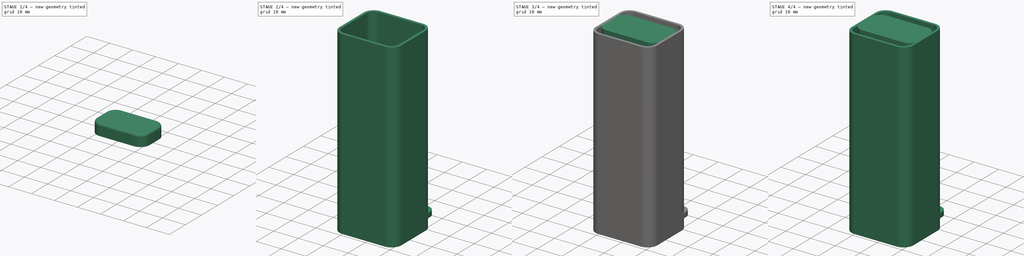
[diagram: build sequence overview — one tinted view per stage of 4, left to right]
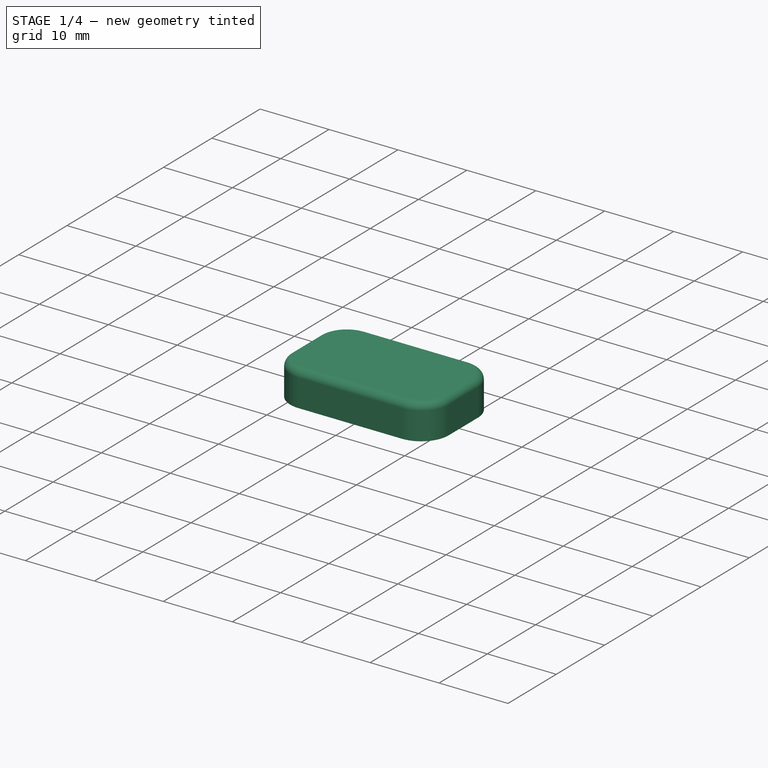
[diagram: stage 1 of 4 — iso view after this stage's code; geometry added in this stage tinted green]
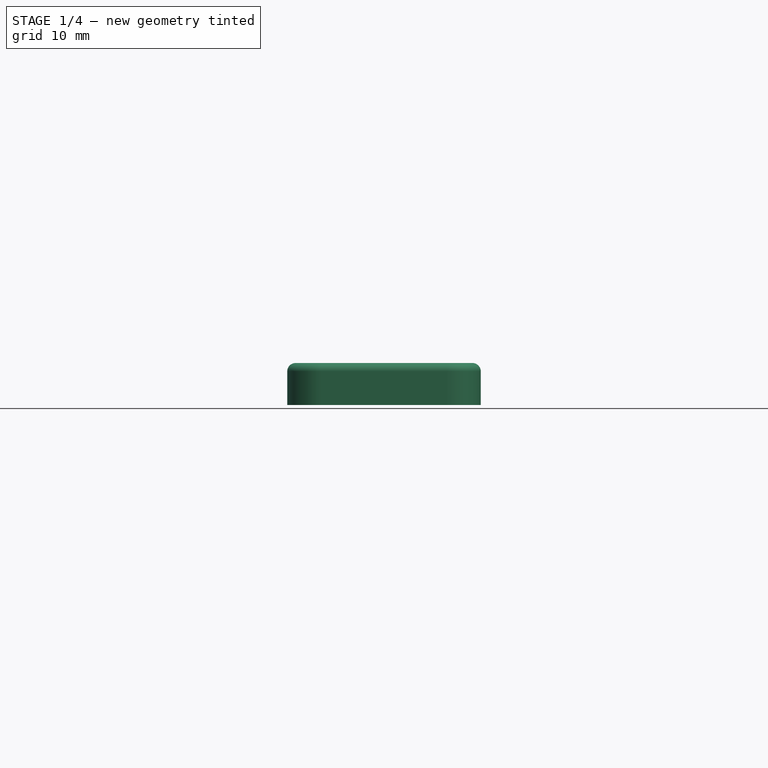
[diagram: stage 1 of 4 — front view after this stage's code; geometry added in this stage tinted green]
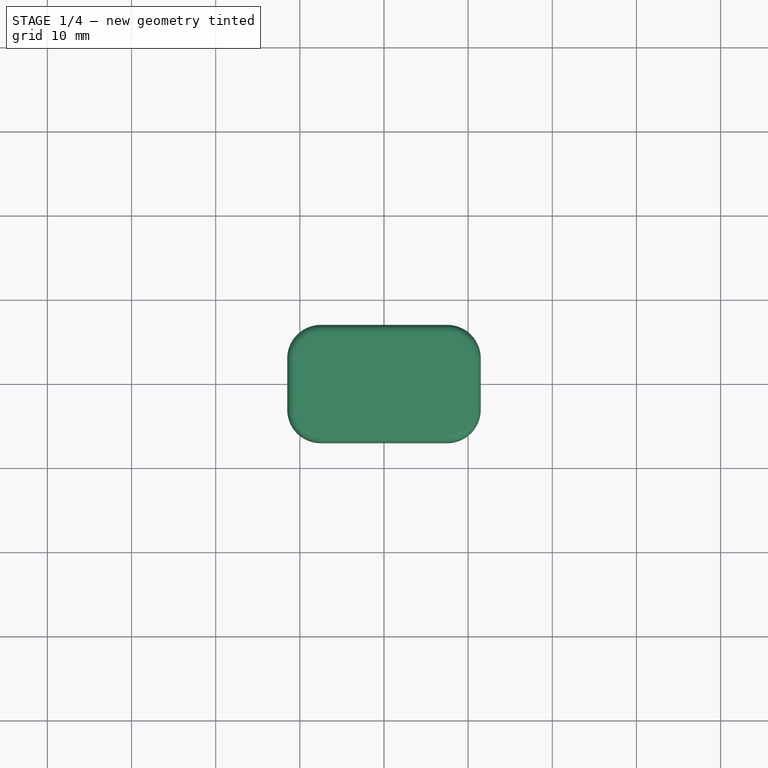
[diagram: stage 1 of 4 — top view after this stage's code; geometry added in this stage tinted green]
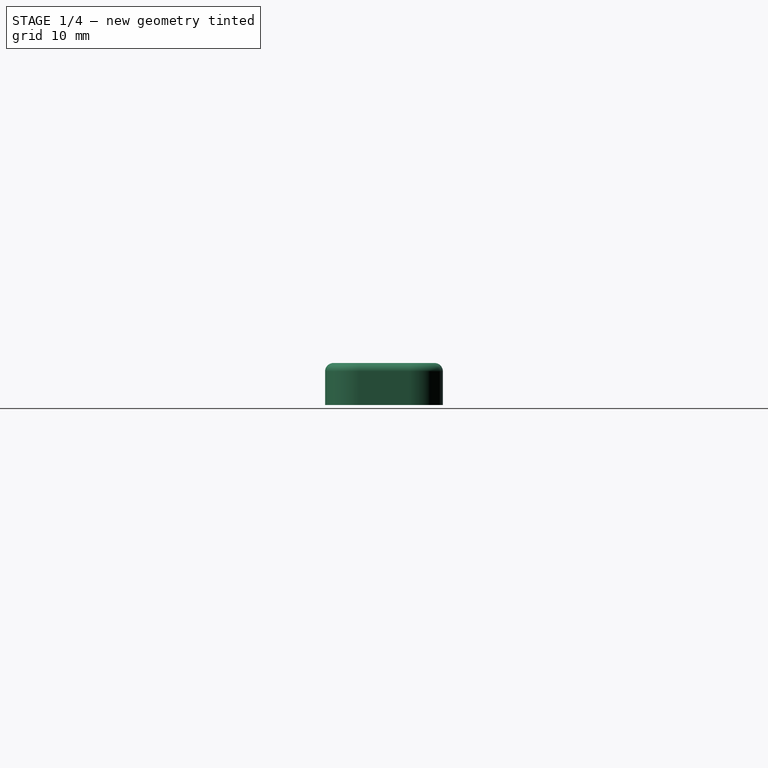
[diagram: stage 1 of 4 — right view after this stage's code; geometry added in this stage tinted green]
FCSTD DOCUMENT  (FreeCAD 0.20R25352 (Git))
Label: collar box
License: All rights reserved
LicenseURL: http://en.wikipedia.org/wiki/All_rights_reserved
objects: Sketcher::SketchObject×7, PartDesign::Pad×5, PartDesign::Thickness×3, PartDesign::Body×3, PartDesign::Pocket×2
note: 30 computed .brp shape members not serialized (recipe doc carries the construction recipe); baked Part::Feature solids carry a one-line shape summary decoded from their .brp

FEATURE [PartDesign::Body] Body
  Group = -> [Sketch,Pad,Sketch003,Pocket,Thickness,Sketch004,Pocket001]
  Origin = -> Origin
  Tip = -> Pocket001
FEATURE [Sketcher::SketchObject] Sketch006
  FullyConstrained = true
  MapMode = 5
  Support = -> [XY_Plane002]
FEATURE [PartDesign::Pad] Pad003
  Direction = (0,0,1)
  Length = 4
  Length2 = 100
  Profile = -> Sketch006
  Type = 0
FEATURE [Sketcher::SketchObject] Sketch005
  ExternalGeometry = -> [Pad003]
  FullyConstrained = false
  MapMode = 5
  Placement = pos=(0,0,4) rot=(0,0,1;0rad)
  Support = -> [Pad003]
  sketch-geometry (16):
    g0: LineSegment StartX=-15.2719 StartY=10 StartZ=0 EndX=9.5 EndY=10 EndZ=0
    g1: LineSegment StartX=12.5 StartY=7 StartZ=0 EndX=12.5 EndY=-7 EndZ=0
    g2: LineSegment StartX=-18.2719 StartY=-7 StartZ=0 EndX=-18.2719 EndY=7 EndZ=0
    g3: ArcOfCircle CenterX=9.5 CenterY=-7 CenterZ=0 NormalX=0 NormalY=0 NormalZ=1 AngleXU=0 Radius=3 StartAngle=4.71239 EndAngle=6.28319
    g4: ArcOfCircle CenterX=-15.2719 CenterY=-7 CenterZ=0 NormalX=0 NormalY=0 NormalZ=1 AngleXU=0 Radius=3 StartAngle=3.14159 EndAngle=4.71239
    g5: ArcOfCircle CenterX=-15.2719 CenterY=7 CenterZ=0 NormalX=0 NormalY=0 NormalZ=1 AngleXU=0 Radius=3 StartAngle=1.5708 EndAngle=3.14159
    g6: ArcOfCircle CenterX=9.5 CenterY=7 CenterZ=0 NormalX=0 NormalY=0 NormalZ=1 AngleXU=0 Radius=3 StartAngle=0 EndAngle=1.5708
    g7: LineSegment StartX=-0.5 StartY=7.2515 StartZ=0 EndX=-0.5 EndY=-10 EndZ=0
    g8: LineSegment StartX=-0.5 StartY=-10 StartZ=0 EndX=-15.2719 EndY=-10 EndZ=0
    g9: LineSegment StartX=0.5 StartY=7.2515 StartZ=0 EndX=0.5 EndY=-10 EndZ=0
    g10: LineSegment StartX=0.5 StartY=-10 StartZ=0 EndX=9.5 EndY=-10 EndZ=0
    g11: ArcOfCircle CenterX=-13.5 CenterY=5.5 CenterZ=0 NormalX=0 NormalY=0 NormalZ=1 AngleXU=0 Radius=1 StartAngle=8.28e-14 EndAngle=3.14159
    g12: ArcOfCircle CenterX=-13.5 CenterY=-5.5 CenterZ=0 NormalX=0 NormalY=0 NormalZ=1 AngleXU=0 Radius=1 StartAngle=3.14159 EndAngle=6.28319
    g13: LineSegment StartX=-14.5 StartY=5.5 StartZ=0 EndX=-14.5 EndY=-5.5 EndZ=0
    g14: LineSegment StartX=-12.5 StartY=-5.5 StartZ=0 EndX=-12.5 EndY=5.5 EndZ=0
    g15: GeomPoint X=-13.5 Y=7e-15 Z=0
  constraints (35):
    c: Horizontal(g0)
    c: Vertical(g1)
    c: Vertical(g2)
    c: Tangent(g2,g4) = 1.5708
    c: Equal(g4,g3)
    c: Diameter(g4) = 6
    c: Tangent(g2,g5) = 1.5708
    c: Tangent(g0,g5) = 1.5708
    c: Tangent(g1,g6) = 1.5708
    c: Tangent(g0,g6) = 1.5708
    c: Equal(g5,g6)
    c: Diameter(g5) = 6
    c: Tangent(g3,g1) = 1.5708
    c: DistanceX(g-4,g1) = 2
    c: Vertical(g7)
    c: Coincident(g7,g8)
    c: Horizontal(g8)
    c: Vertical(g9)
    c: Coincident(g9,g10)
    c: Coincident(g10,g3)
    c: Horizontal(g10)
    c: DistanceY(g4,g0) = 20
    c: Horizontal(g7,g9)
    c: Tangent(g8,g4) = 1.5708
    c: Symmetric(g0,g3,g-1)
    c: Tangent(g11,g13) = -1.5708
    c: Tangent(g13,g12) = -1.5708
    c: Tangent(g12,g14) = -1.5708
    c: Tangent(g14,g11) = -1.5708
    c: Equal(g11,g12)
    c: DistanceX(g11,g11) = 2
    c: Symmetric(g11,g12,g-1)
    c: DistanceY(g13,g13) = 11
    c: Symmetric(g11,g12,g15)
    c: DistanceX(g15,g-5) = 3
FEATURE [PartDesign::Thickness] Thickness002
  Base = -> Pad003 [Face9]
  BaseFeature = -> Pad003
  Intersection = false
  Join = 0
  Mode = 0
  SupportTransform = false
  Value = 1
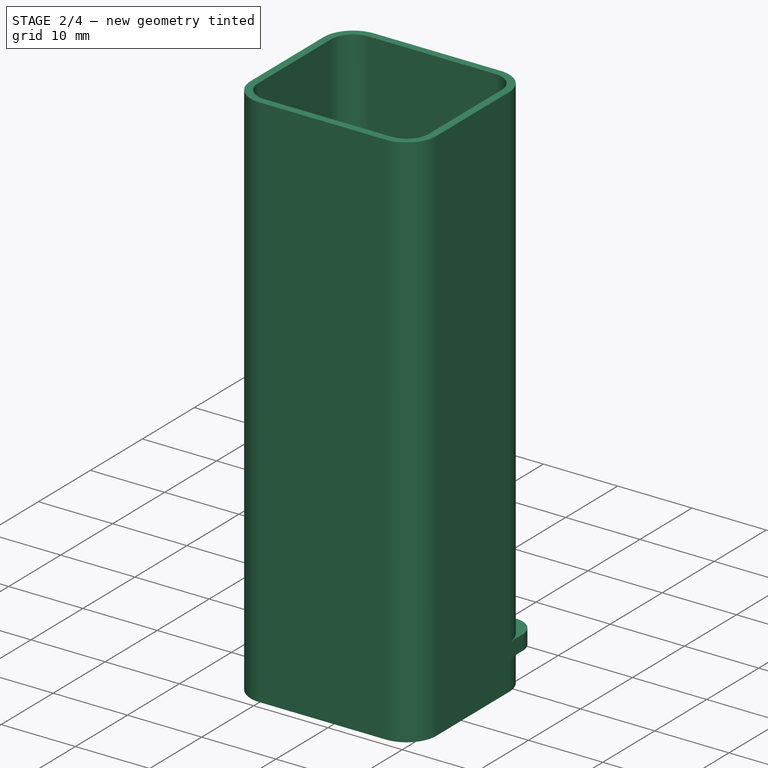
[diagram: stage 2 of 4 — iso view after this stage's code; geometry added in this stage tinted green]
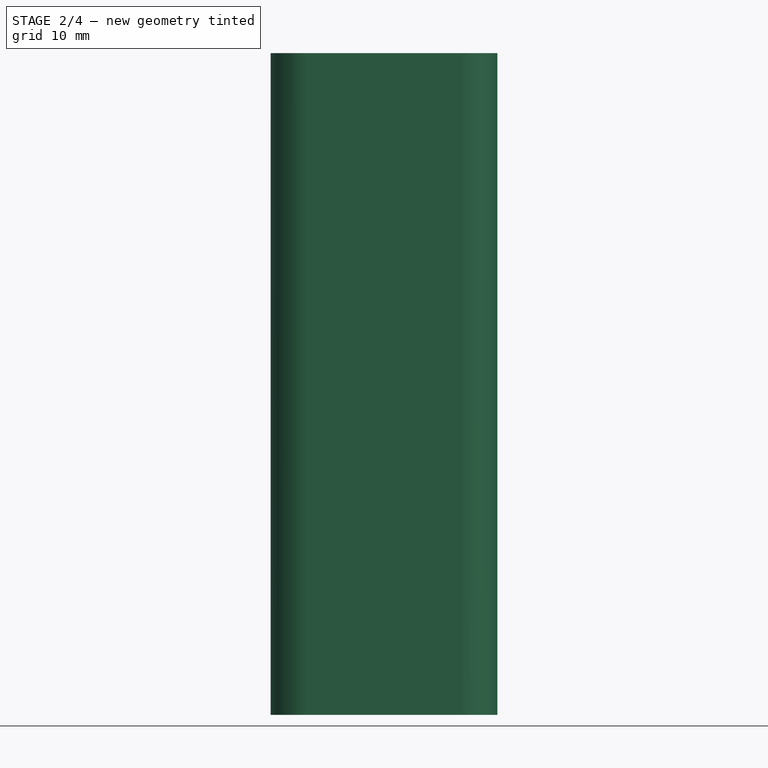
[diagram: stage 2 of 4 — front view after this stage's code; geometry added in this stage tinted green]
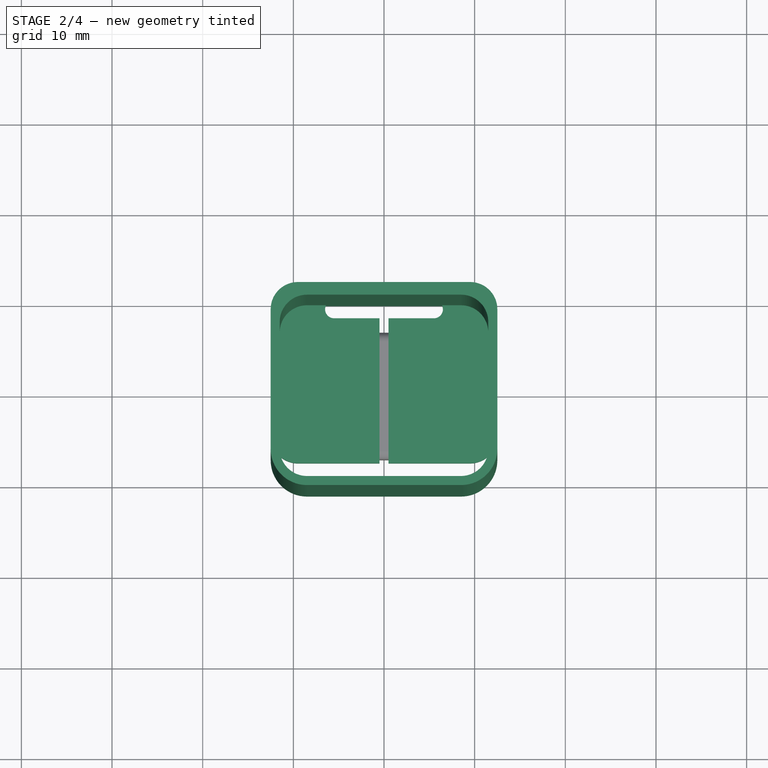
[diagram: stage 2 of 4 — top view after this stage's code; geometry added in this stage tinted green]
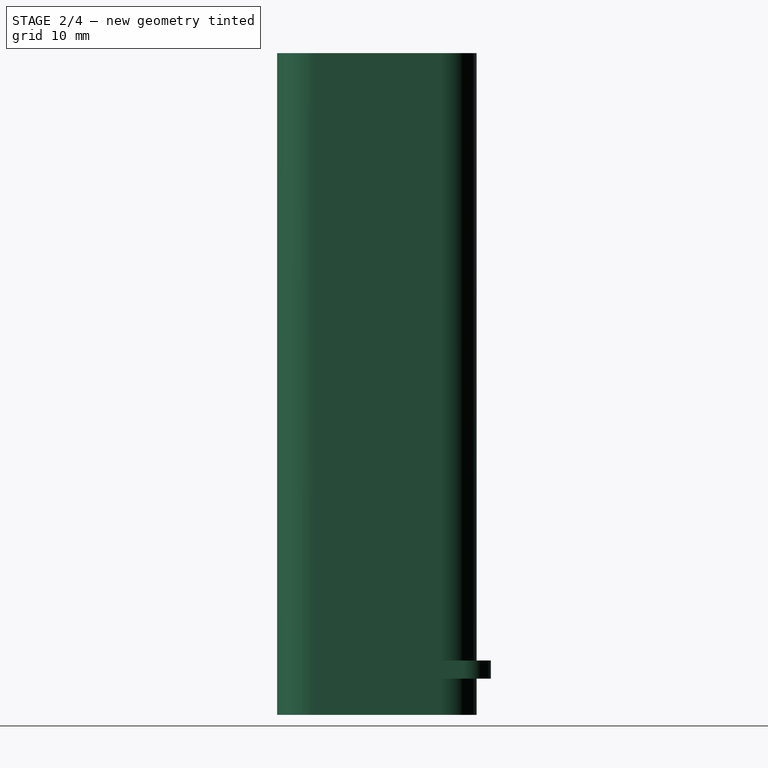
[diagram: stage 2 of 4 — right view after this stage's code; geometry added in this stage tinted green]
FEATURE [Sketcher::SketchObject] Sketch
  FullyConstrained = true
  MapMode = 5
  Support = -> [XY_Plane]
  sketch-geometry (8):
    g0: LineSegment StartX=-8.5 StartY=10 StartZ=0 EndX=8.5 EndY=10 EndZ=0
    g1: LineSegment StartX=11.5 StartY=7 StartZ=0 EndX=11.5 EndY=-7 EndZ=0
    g2: LineSegment StartX=8.5 StartY=-10 StartZ=0 EndX=-8.5 EndY=-10 EndZ=0
    g3: LineSegment StartX=-11.5 StartY=-7 StartZ=0 EndX=-11.5 EndY=7 EndZ=0
    g4: ArcOfCircle CenterX=8.5 CenterY=7 CenterZ=0 NormalX=0 NormalY=0 NormalZ=1 AngleXU=0 Radius=3 StartAngle=9.70904e-11 EndAngle=1.5708
    g5: ArcOfCircle CenterX=8.5 CenterY=-7 CenterZ=0 NormalX=0 NormalY=0 NormalZ=1 AngleXU=0 Radius=3 StartAngle=4.71239 EndAngle=6.28319
    g6: ArcOfCircle CenterX=-8.5 CenterY=-7 CenterZ=0 NormalX=0 NormalY=0 NormalZ=1 AngleXU=0 Radius=3 StartAngle=3.14159 EndAngle=4.71239
    g7: ArcOfCircle CenterX=-8.5 CenterY=7 CenterZ=0 NormalX=0 NormalY=0 NormalZ=1 AngleXU=0 Radius=3 StartAngle=1.5708 EndAngle=3.14159
  constraints (19):
    c: Horizontal(g0)
    c: Horizontal(g2)
    c: Vertical(g1)
    c: Vertical(g3)
    c: Tangent(g0,g4) = 1.5708
    c: Tangent(g1,g4) = 1.5708
    c: Tangent(g1,g5) = 1.5708
    c: Tangent(g2,g5) = 1.5708
    c: Tangent(g2,g6) = 1.5708
    c: Tangent(g3,g6) = 1.5708
    c: Tangent(g3,g7) = 1.5708
    c: Tangent(g0,g7) = 1.5708
    c: Equal(g4,g5)
    c: Equal(g5,g6)
    c: Equal(g6,g7)
    c: Radius(g7) = 3
    c: DistanceX(g3,g1) = 23
    c: DistanceY(g2,g0) = 20
    c: Symmetric(g7,g5,g-1)
FEATURE [PartDesign::Pad] Pad
  Direction = (0,0,1)
  Length = 73
  Length2 = 100
  Profile = -> Sketch
  Type = 0
FEATURE [PartDesign::Thickness] Thickness
  Base = -> Pad [Face9,Face10]
  BaseFeature = -> Pad
  Intersection = false
  Join = 0
  Mode = 0
  SupportTransform = false
  Value = 1
FEATURE [PartDesign::Pad] Pad004
  BaseFeature = -> Thickness002
  Direction = (0,0,1)
  Length = 2
  Length2 = 100
  Profile = -> Sketch005
  Type = 0
FEATURE [PartDesign::Body] Body002
  Group = -> [Sketch006,Pad003,Sketch005,Thickness002,Pad004]
  Origin = -> Origin002
  Placement = pos=(50,0,-22) rot=(0,0,1;0rad)
  Tip = -> Pad004
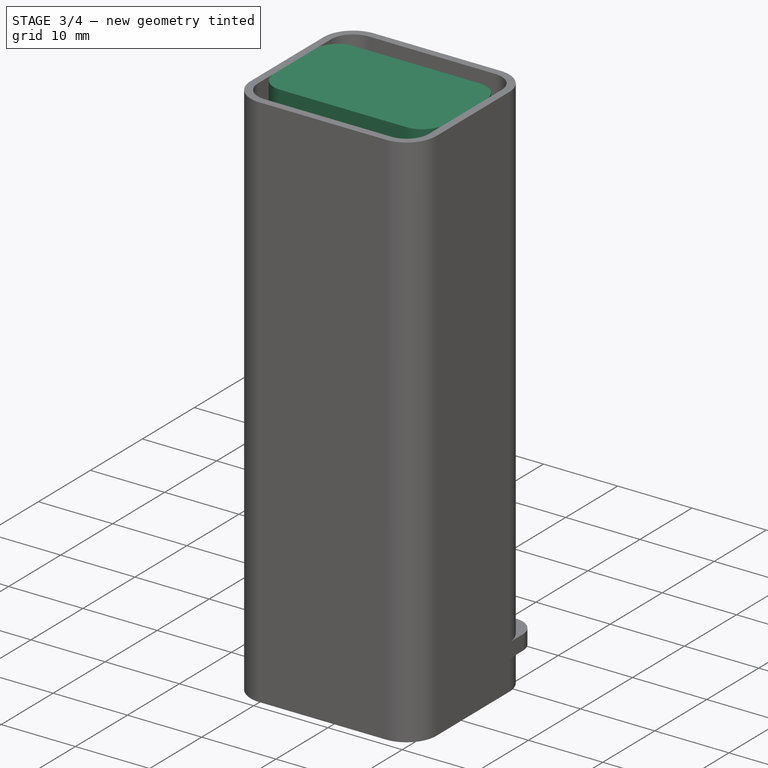
[diagram: stage 3 of 4 — iso view after this stage's code; geometry added in this stage tinted green]
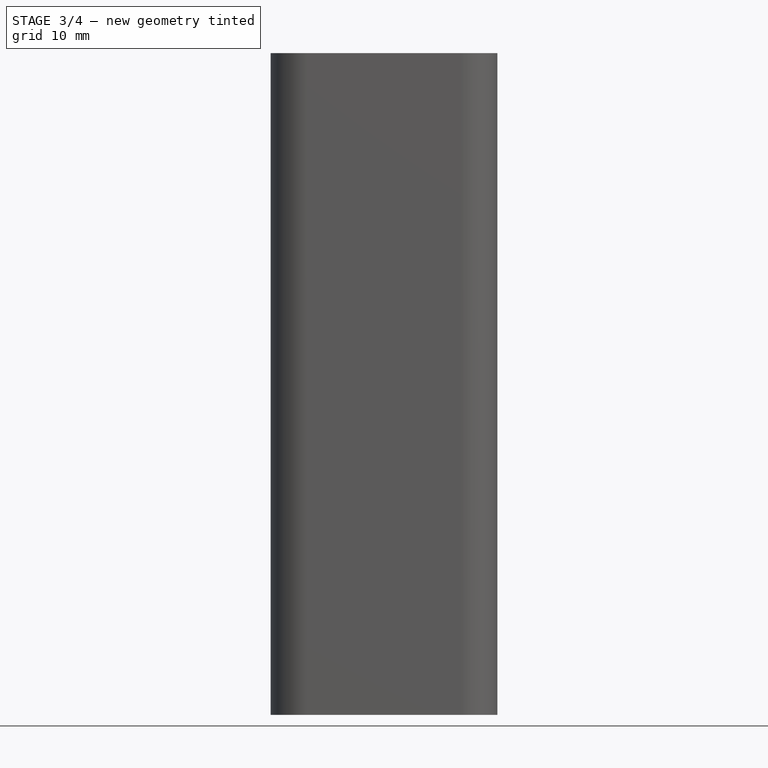
[diagram: stage 3 of 4 — front view after this stage's code; geometry added in this stage tinted green]
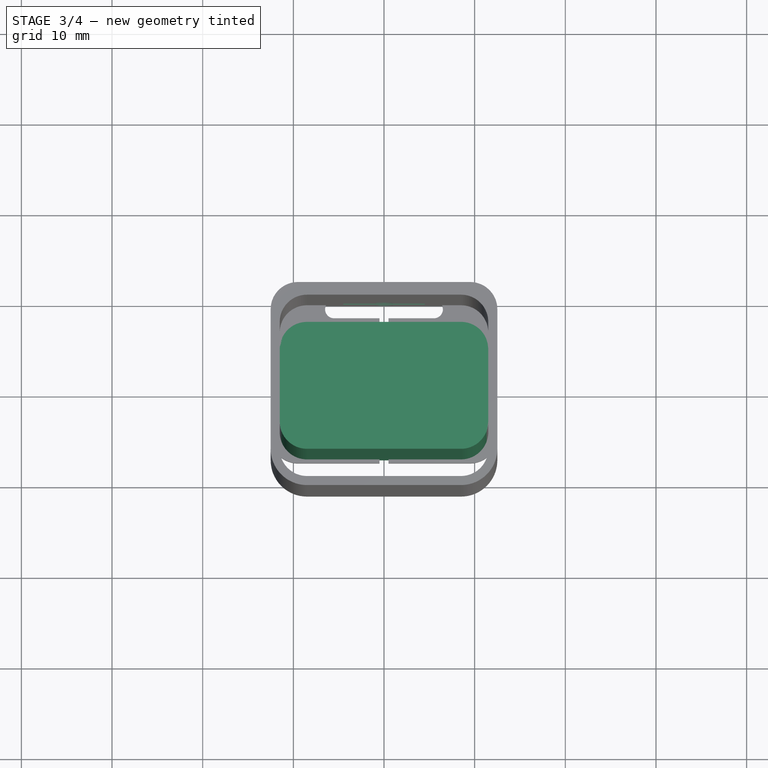
[diagram: stage 3 of 4 — top view after this stage's code; geometry added in this stage tinted green]
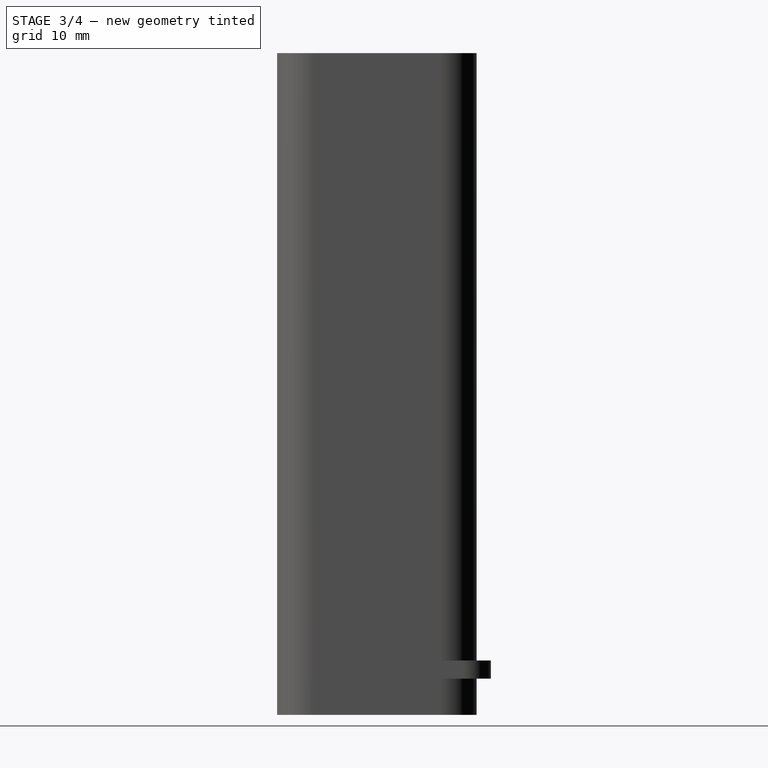
[diagram: stage 3 of 4 — right view after this stage's code; geometry added in this stage tinted green]
FEATURE [Sketcher::SketchObject] Sketch001
  FullyConstrained = true
  MapMode = 5
  Support = -> [XY_Plane001]
FEATURE [PartDesign::Pad] Pad001
  Direction = (0,0,1)
  Length = 4
  Length2 = 100
  Profile = -> Sketch001
  Type = 0
FEATURE [PartDesign::Body] Body001
  Group = -> [Sketch001,Pad001,Sketch002,Thickness001,Pad002]
  Origin = -> Origin001
  Placement = pos=(0,0,-22) rot=(0,0,1;0rad)
  Tip = -> Pad002
FEATURE [Sketcher::SketchObject] Sketch003
  FullyConstrained = false
  MapMode = 5
  Placement = pos=(11.5,0,0) rot=(0.57735,0.57735,0.57735;2.0944rad)
  Support = -> [Sketch003]
  sketch-geometry (4):
    g0: LineSegment StartX=-2.10179 StartY=41.1026 StartZ=0 EndX=2.23133 EndY=41.1026 EndZ=0
    g1: LineSegment StartX=2.23133 StartY=41.1026 StartZ=0 EndX=2.23133 EndY=37.0829 EndZ=0
    g2: LineSegment StartX=2.23133 StartY=37.0829 StartZ=0 EndX=-2.10179 EndY=37.0829 EndZ=0
    g3: LineSegment StartX=-2.10179 StartY=37.0829 StartZ=0 EndX=-2.10179 EndY=41.1026 EndZ=0
  constraints (8):
    c: Coincident(g0,g1)
    c: Coincident(g1,g2)
    c: Coincident(g2,g3)
    c: Coincident(g3,g0)
    c: Horizontal(g0)
    c: Horizontal(g2)
    c: Vertical(g1)
    c: Vertical(g3)
FEATURE [PartDesign::Pocket] Pocket
  BaseFeature = -> Pad
  Length = 5
  Length2 = 100
  Profile = -> Sketch003
  Type = 1
FEATURE [Sketcher::SketchObject] Sketch004
  ExternalGeometry = -> [Thickness]
  FullyConstrained = true
  MapMode = 5
  Placement = pos=(0,11,0) rot=(0,0.707107,0.707107;3.14159rad)
  Support = -> [Thickness]
  sketch-geometry (7):
    g0: LineSegment StartX=-4.5 StartY=14.62 StartZ=0 EndX=4.5 EndY=14.62 EndZ=0
    g1: LineSegment StartX=4.5 StartY=14.62 StartZ=0 EndX=4.5 EndY=10.62 EndZ=0
    g2: LineSegment StartX=4.5 StartY=10.62 StartZ=0 EndX=-4.5 EndY=10.62 EndZ=0
    g3: LineSegment StartX=-4.5 StartY=10.62 StartZ=0 EndX=-4.5 EndY=14.62 EndZ=0
    g4: Circle CenterX=0 CenterY=5 CenterZ=0 NormalX=0 NormalY=0 NormalZ=1 AngleXU=0 Radius=1
    g5: Circle CenterX=4.59e-14 CenterY=20.24 CenterZ=0 NormalX=0 NormalY=0 NormalZ=1 AngleXU=0 Radius=1
    g6: GeomPoint X=0 Y=12.62 Z=0
  constraints (18):
    c: Coincident(g0,g1)
    c: Coincident(g1,g2)
    c: Coincident(g2,g3)
    c: Coincident(g3,g0)
    c: Horizontal(g0)
    c: Horizontal(g2)
    c: Vertical(g1)
    c: Vertical(g3)
    c: DistanceX(g0,g0) = 9
    c: DistanceY(g3,g3) = 4
    c: PointOnObject(g6,g-2)
    c: Symmetric(g0,g1,g6)
    c: Equal(g4,g5)
    c: Diameter(g4) = 2
    c: PointOnObject(g4,g-2)
    c: Symmetric(g4,g5,g6)
    c: DistanceY(g4,g5) = 15.24
    c: DistanceY(g-1,g4) = 5
FEATURE [PartDesign::Pocket] Pocket001
  BaseFeature = -> Thickness
  Length = 5
  Length2 = 100
  Profile = -> Sketch004
  Type = 2
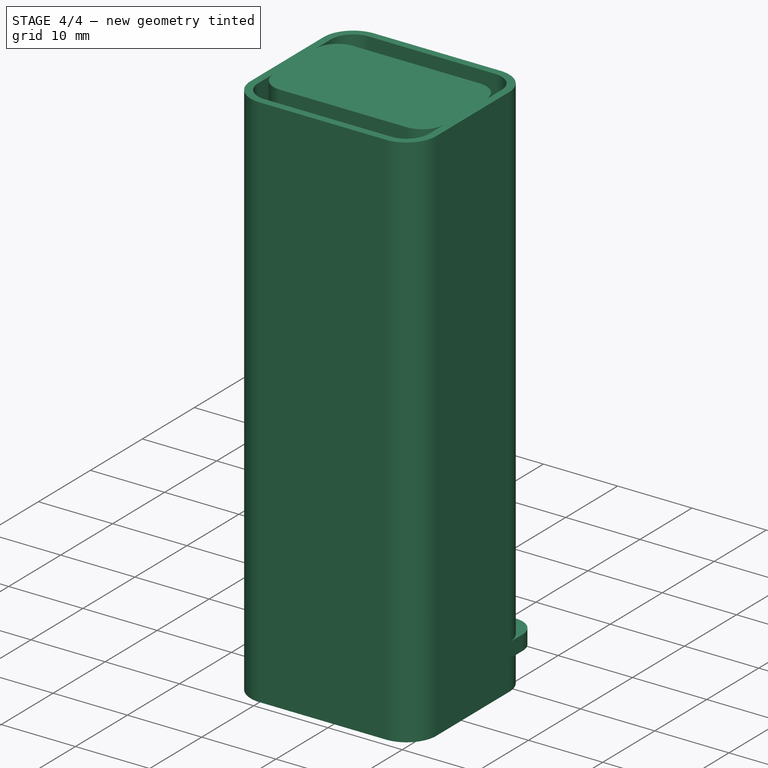
[diagram: stage 4 of 4 — iso view after this stage's code; geometry added in this stage tinted green]
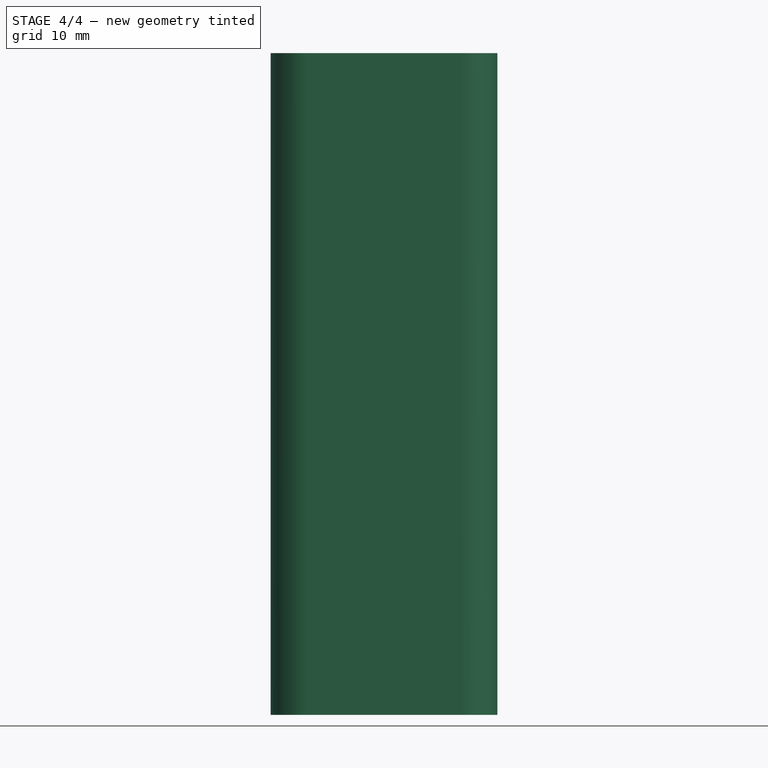
[diagram: stage 4 of 4 — front view after this stage's code; geometry added in this stage tinted green]
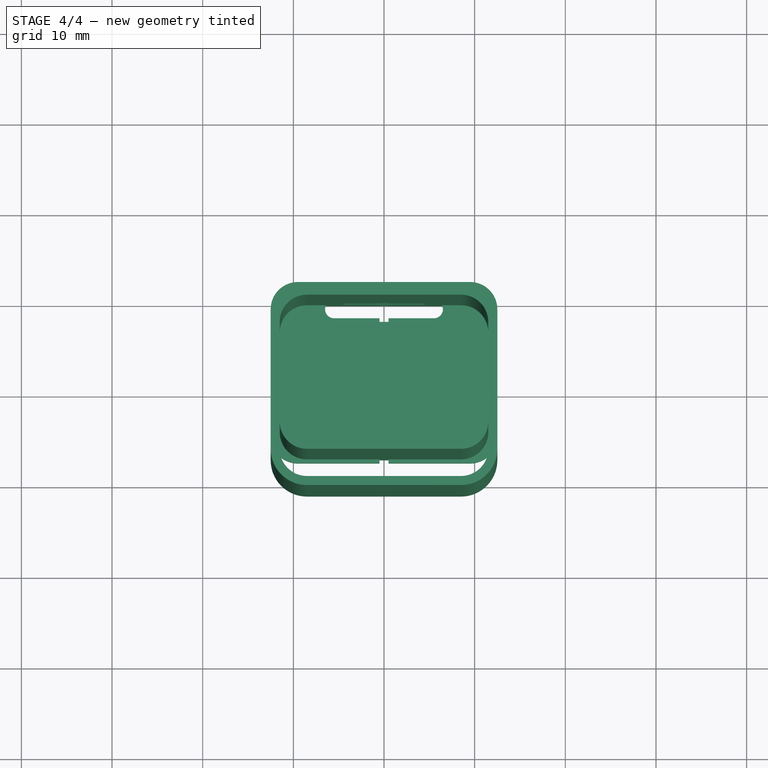
[diagram: stage 4 of 4 — top view after this stage's code; geometry added in this stage tinted green]
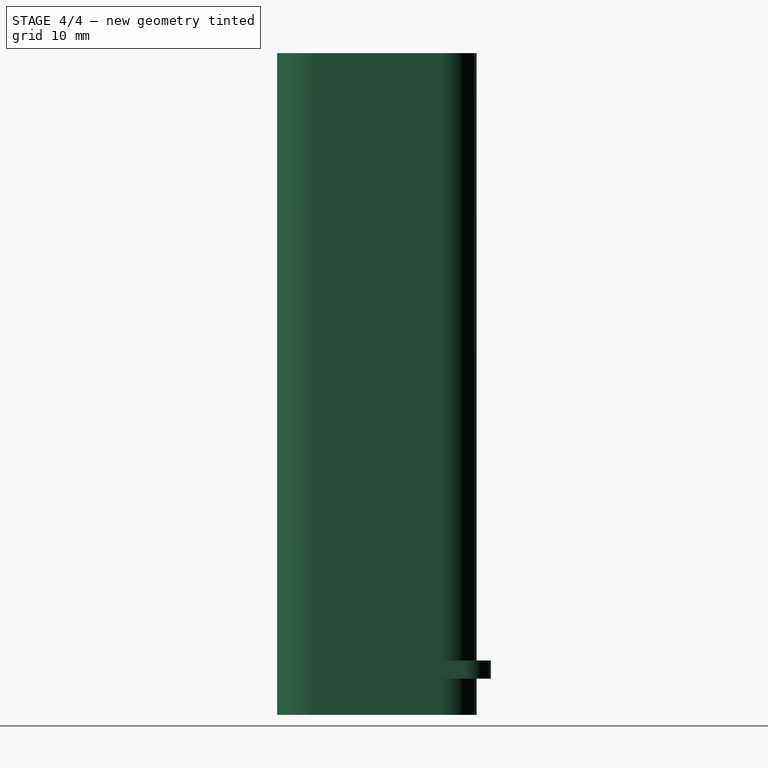
[diagram: stage 4 of 4 — right view after this stage's code; geometry added in this stage tinted green]
FEATURE [Sketcher::SketchObject] Sketch002
  ExternalGeometry = -> [Pad001]
  FullyConstrained = false
  MapMode = 5
  Placement = pos=(0,0,4) rot=(0,0,1;0rad)
  Support = -> [Pad001]
  sketch-geometry (16):
    g0: LineSegment StartX=-9.5 StartY=12.5669 StartZ=0 EndX=9.5 EndY=12.5669 EndZ=0
    g1: LineSegment StartX=12.5 StartY=9.56694 StartZ=0 EndX=12.5 EndY=-4.43306 EndZ=0
    g2: LineSegment StartX=-12.5 StartY=-4.43306 StartZ=0 EndX=-12.5 EndY=9.56694 EndZ=0
    g3: ArcOfCircle CenterX=9.5 CenterY=-4.43306 CenterZ=0 NormalX=0 NormalY=0 NormalZ=1 AngleXU=0 Radius=3 StartAngle=4.71247 EndAngle=6.28319
    g4: ArcOfCircle CenterX=-9.5 CenterY=-4.43306 CenterZ=0 NormalX=0 NormalY=0 NormalZ=1 AngleXU=0 Radius=3 StartAngle=3.14159 EndAngle=4.71238
    g5: ArcOfCircle CenterX=-9.5 CenterY=9.56694 CenterZ=0 NormalX=0 NormalY=0 NormalZ=1 AngleXU=0 Radius=3 StartAngle=1.5708 EndAngle=3.14159
    g6: ArcOfCircle CenterX=9.5 CenterY=9.56694 CenterZ=0 NormalX=0 NormalY=0 NormalZ=1 AngleXU=0 Radius=3 StartAngle=1e-16 EndAngle=1.5708
    g7: ArcOfCircle CenterX=-5.5 CenterY=9.56694 CenterZ=0 NormalX=0 NormalY=0 NormalZ=1 AngleXU=0 Radius=1 StartAngle=1.5708 EndAngle=4.71239
    g8: ArcOfCircle CenterX=5.5 CenterY=9.56694 CenterZ=0 NormalX=0 NormalY=0 NormalZ=1 AngleXU=0 Radius=1 StartAngle=4.71239 EndAngle=7.85398
    g9: LineSegment StartX=5.5 StartY=10.5669 StartZ=0 EndX=-5.5 EndY=10.5669 EndZ=0
    g10: LineSegment StartX=-5.5 StartY=8.56694 StartZ=0 EndX=-0.5 EndY=8.56694 EndZ=0
    g11: LineSegment StartX=-0.5 StartY=8.56694 StartZ=0 EndX=-0.5 EndY=-7.43306 EndZ=0
    g12: LineSegment StartX=-0.5 StartY=-7.43306 StartZ=0 EndX=-9.50002 EndY=-7.43306 EndZ=0
    g13: LineSegment StartX=5.5 StartY=8.56694 StartZ=0 EndX=0.5 EndY=8.56694 EndZ=0
    g14: LineSegment StartX=0.5 StartY=8.56694 StartZ=0 EndX=0.5 EndY=-7.43306 EndZ=0
    g15: LineSegment StartX=0.5 StartY=-7.43306 StartZ=0 EndX=9.50023 EndY=-7.43306 EndZ=0
  constraints (40):
    c: Horizontal(g0)
    c: Vertical(g1)
    c: Vertical(g2)
    c: Tangent(g2,g4) = 1.5708
    c: Equal(g4,g3)
    c: Diameter(g4) = 6
    c: Tangent(g2,g5) = 1.5708
    c: Tangent(g0,g5) = 1.5708
    c: Tangent(g1,g6) = 1.5708
    c: Tangent(g0,g6) = 1.5708
    c: Equal(g5,g6)
    c: Diameter(g5) = 6
    c: Symmetric(g7,g8,g-2)
    c: DistanceX(g9,g9) = 11
    c: DistanceY(g7,g7) = 2
    c: DistanceY(g7,g0) = 2
    c: Horizontal(g9)
    c: Equal(g8,g7)
    c: Tangent(g7,g9) = -1.5708
    c: Coincident(g9,g8)
    c: Tangent(g3,g1) = 1.5708
    c: DistanceX(g-4,g1) = 2
    c: DistanceX(g2,g-5) = 2
    c: Tangent(g7,g10) = -1.5708
    c: Coincident(g10,g11)
    c: Vertical(g11)
    c: Coincident(g11,g12)
    c: Coincident(g12,g4)
    c: Horizontal(g12)
    c: Horizontal(g10)
    c: Tangent(g8,g13) = 1.5708
    c: Coincident(g13,g14)
    c: Vertical(g14)
    c: Coincident(g14,g15)
    c: Coincident(g15,g3)
    c: Horizontal(g15)
    c: Symmetric(g10,g13,g-2)
    c: DistanceX(g10,g13) = 1
    c: DistanceY(g4,g0) = 20
    c: Horizontal(g11,g14)
FEATURE [PartDesign::Thickness] Thickness001
  Base = -> Pad001 [Face9]
  BaseFeature = -> Pad001
  Intersection = false
  Join = 0
  Mode = 0
  SupportTransform = false
  Value = 1
FEATURE [PartDesign::Pad] Pad002
  BaseFeature = -> Thickness001
  Direction = (0,0,1)
  Length = 2
  Length2 = 100
  Profile = -> Sketch002
  Type = 0
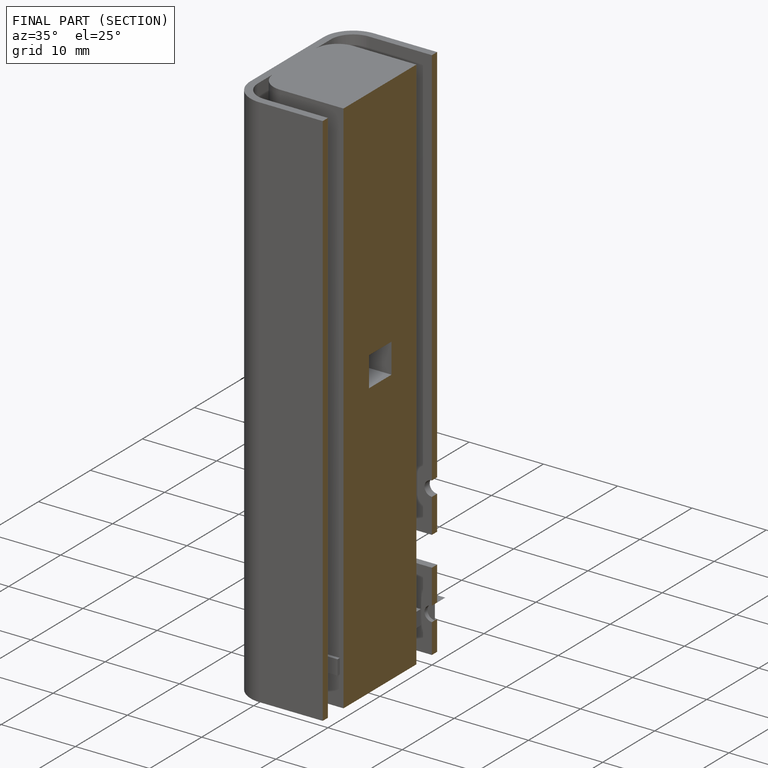
[diagram: finished part — half-section view (interior)]
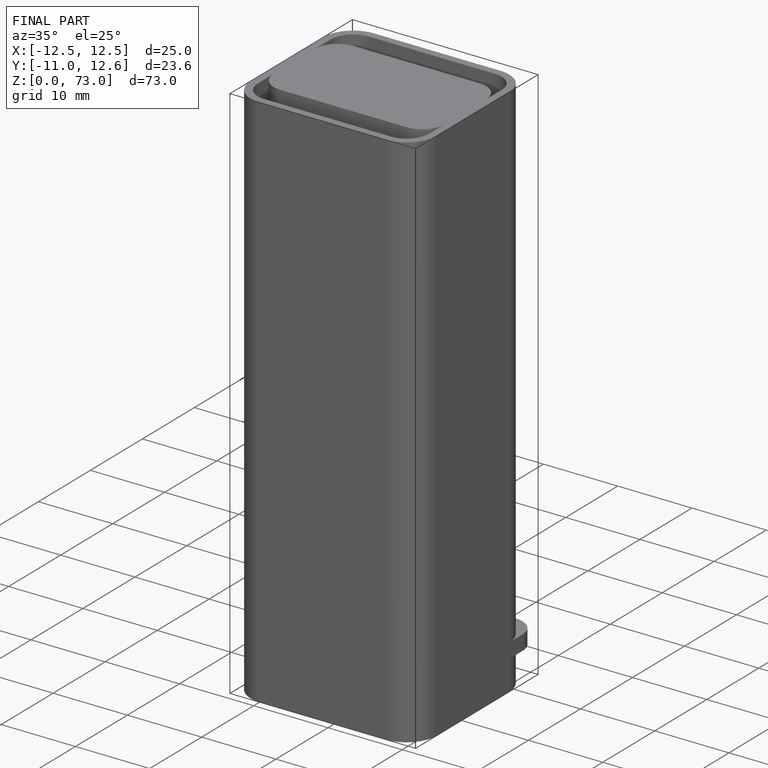
[diagram: finished part — iso view with bounding-box wireframe]
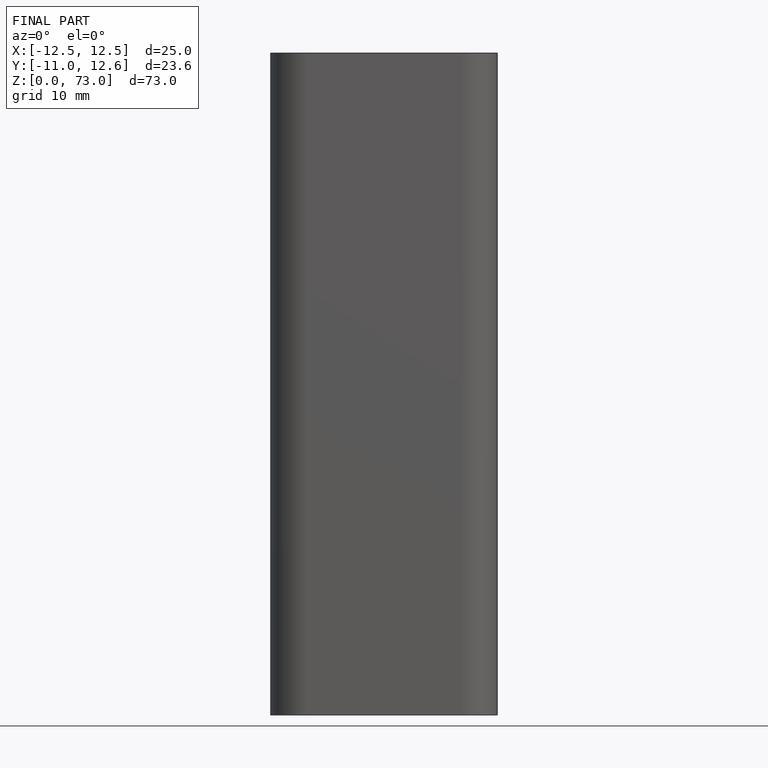
[diagram: finished part — front view with bounding-box wireframe]
